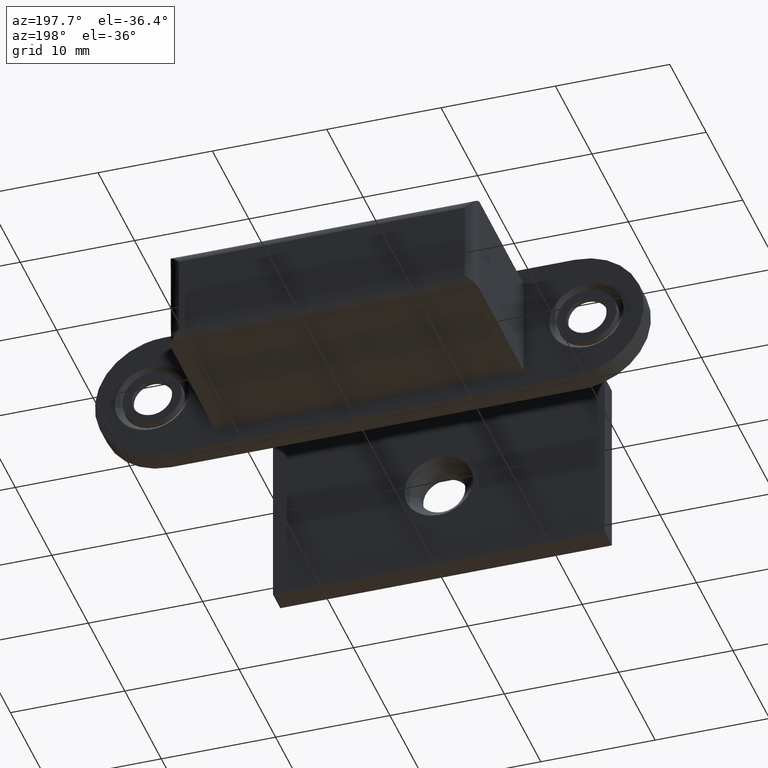
[diagram: clean part render]
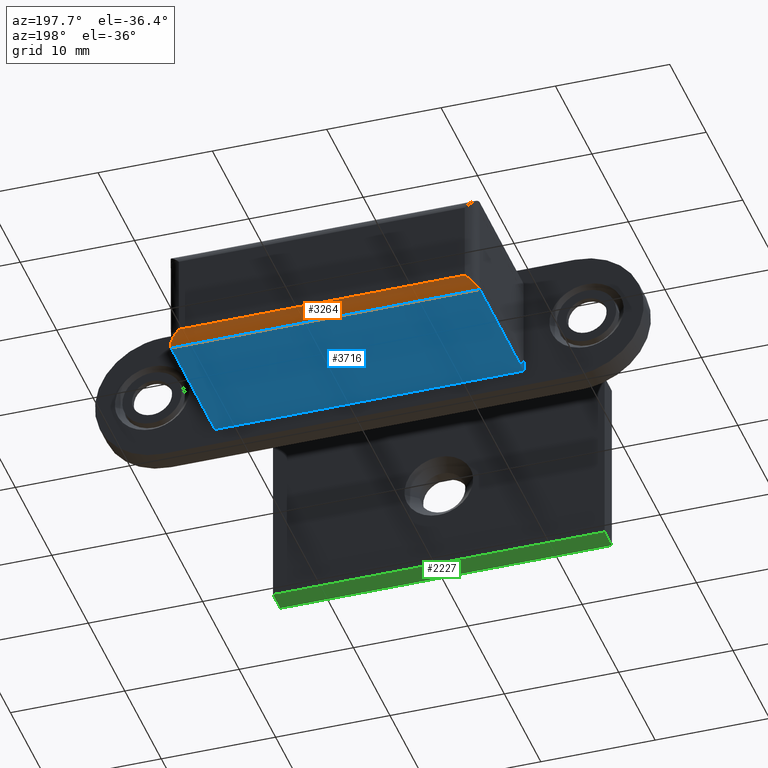
[diagram: same view with three faces highlighted in distinct colors, each labeled with its STEP entity id]
A machine part, auxiliary view with three faces highlighted in distinct colors.
Their STEP definitions:

[orange] entity #3264 — the highlighted face is a freeform B-spline surface patch.
#2905=CARTESIAN_POINT('',(12.499995999999960,0.0,-3.500000000000000));
#2906=VERTEX_POINT('',#2905);
#2912=CARTESIAN_POINT('',(-12.500000000000000,0.0,-3.500000000000000));
#2913=VERTEX_POINT('',#2912);
#2914=CARTESIAN_POINT('',(12.499995999999960,0.0,-3.500000000000000));
#2915=CARTESIAN_POINT('',(-12.500000000000000,0.0,-3.500000000000000));
#2916=QUASI_UNIFORM_CURVE('',1,(#2914,#2915),.UNSPECIFIED.,.F.,.U.);
#2917=EDGE_CURVE('',#2906,#2913,#2916,.T.);
#3189=CARTESIAN_POINT('',(-13.500000000000000,-1.0,-4.500000000000000));
#3190=VERTEX_POINT('',#3189);
#3191=CARTESIAN_POINT('',(-12.500000000000000,0.0,-3.500000000000000));
#3192=CARTESIAN_POINT('',(-13.500000000000000,0.0,-4.500000000000000));
#3193=CARTESIAN_POINT('',(-13.500000000000000,-1.000000000000000,-4.500000000000000));
#3201=(BOUNDED_CURVE()B_SPLINE_CURVE(2,(#3191,#3192,#3193),.UNSPECIFIED.,.F.,.U.)CURVE()GEOMETRIC_REPRESENTATION_ITEM()QUASI_UNIFORM_CURVE()RATIONAL_B_SPLINE_CURVE((1.0,0.707106781186547,1.0))REPRESENTATION_ITEM(''));
#3202=EDGE_CURVE('',#2913,#3190,#3201,.T.);
#3226=CARTESIAN_POINT('',(14.174995900000001,-1.026176948307874,-4.499657324975557));
#3227=CARTESIAN_POINT('',(-14.191874897500000,-1.026176948307874,-4.499657324975557));
#3228=CARTESIAN_POINT('',(14.174995899999999,0.074984800554719,-4.528492260166261));
#3229=CARTESIAN_POINT('',(-14.191874897500000,0.074984800554719,-4.528492260166261));
#3230=CARTESIAN_POINT('',(14.174995900000003,-0.002475520619191,-3.429679924374016));
#3231=CARTESIAN_POINT('',(-14.191874897500002,-0.002475520619191,-3.429679924374016));
#3239=(BOUNDED_SURFACE()B_SPLINE_SURFACE(1,2,((#3226,#3228,#3230),(#3227,#3229,#3231)),.UNSPECIFIED.,.F.,.F.,.U.)B_SPLINE_SURFACE_WITH_KNOTS((2,2),(3,3),(0.0,28.366870797500010),(0.0,0.994518632334191),.UNSPECIFIED.)GEOMETRIC_REPRESENTATION_ITEM()RATIONAL_B_SPLINE_SURFACE(((1.0,0.670944223154768,0.996392648609106),(1.0,0.670944223154768,0.996392648609106)))REPRESENTATION_ITEM('')SURFACE());
#3240=CARTESIAN_POINT('',(13.499995999999999,-1.0,-4.500000000000000));
#3241=VERTEX_POINT('',#3240);
#3242=CARTESIAN_POINT('',(12.499995999999960,0.0,-3.500000000000000));
#3243=CARTESIAN_POINT('',(13.499995999999957,0.0,-4.500000000000000));
#3244=CARTESIAN_POINT('',(13.499995999999960,-1.000000000000000,-4.500000000000000));
#3252=(BOUNDED_CURVE()B_SPLINE_CURVE(2,(#3242,#3243,#3244),.UNSPECIFIED.,.F.,.U.)CURVE()GEOMETRIC_REPRESENTATION_ITEM()QUASI_UNIFORM_CURVE()RATIONAL_B_SPLINE_CURVE((1.0,0.707106781186547,1.0))REPRESENTATION_ITEM(''));
#3253=EDGE_CURVE('',#2906,#3241,#3252,.T.);
#3254=ORIENTED_EDGE('',*,*,#3253,.T.);
#3255=CARTESIAN_POINT('',(-13.500000000000000,-1.0,-4.500000000000000));
#3256=CARTESIAN_POINT('',(13.499995999999999,-1.0,-4.500000000000000));
#3257=QUASI_UNIFORM_CURVE('',1,(#3255,#3256),.UNSPECIFIED.,.F.,.U.);
#3258=EDGE_CURVE('',#3190,#3241,#3257,.T.);
#3259=ORIENTED_EDGE('',*,*,#3258,.F.);
#3260=ORIENTED_EDGE('',*,*,#3202,.F.);
#3261=ORIENTED_EDGE('',*,*,#2917,.F.);
#3262=EDGE_LOOP('',(#3254,#3259,#3260,#3261));
#3263=FACE_OUTER_BOUND('',#3262,.T.);
#3264=ADVANCED_FACE('',(#3263),#3239,.T.);

[blue] entity #3716 — the highlighted face is a freeform B-spline surface patch.
#3189=CARTESIAN_POINT('',(-13.500000000000000,-1.0,-4.500000000000000));
#3190=VERTEX_POINT('',#3189);
#3240=CARTESIAN_POINT('',(13.499995999999999,-1.0,-4.500000000000000));
#3241=VERTEX_POINT('',#3240);
#3255=CARTESIAN_POINT('',(-13.500000000000000,-1.0,-4.500000000000000));
#3256=CARTESIAN_POINT('',(13.499995999999999,-1.0,-4.500000000000000));
#3257=QUASI_UNIFORM_CURVE('',1,(#3255,#3256),.UNSPECIFIED.,.F.,.U.);
#3258=EDGE_CURVE('',#3190,#3241,#3257,.T.);
#3658=CARTESIAN_POINT('',(-13.500000000000000,-13.0,-4.500000000000000));
#3659=VERTEX_POINT('',#3658);
#3660=CARTESIAN_POINT('',(-13.500000000000000,-1.0,-4.500000000000000));
#3661=CARTESIAN_POINT('',(-13.500000000000000,-13.0,-4.500000000000000));
#3662=QUASI_UNIFORM_CURVE('',1,(#3660,#3661),.UNSPECIFIED.,.F.,.U.);
#3663=EDGE_CURVE('',#3190,#3659,#3662,.T.);
#3695=CARTESIAN_POINT('',(-14.848649747868770,-13.599399976741671,-4.500000000000000));
#3696=CARTESIAN_POINT('',(-14.848649747868770,-0.400599701393247,-4.500000000000000));
#3697=CARTESIAN_POINT('',(14.848646472065100,-13.599399976741671,-4.500000000000000));
#3698=CARTESIAN_POINT('',(14.848646472065100,-0.400599701393247,-4.500000000000000));
#3699=B_SPLINE_SURFACE_WITH_KNOTS('',1,1,((#3695,#3697),(#3696,#3698)),.UNSPECIFIED.,.F.,.F.,.U.,(2,2),(2,2),(0.0,13.198800275348431),(0.0,29.697296219933872),.UNSPECIFIED.);
#3700=ORIENTED_EDGE('',*,*,#3663,.F.);
#3701=ORIENTED_EDGE('',*,*,#3258,.T.);
#3702=CARTESIAN_POINT('',(13.499995999999960,-13.0,-4.500000000000000));
#3703=VERTEX_POINT('',#3702);
#3704=CARTESIAN_POINT('',(13.499995999999999,-1.0,-4.500000000000000));
#3705=CARTESIAN_POINT('',(13.499995999999960,-13.0,-4.500000000000000));
#3706=QUASI_UNIFORM_CURVE('',1,(#3704,#3705),.UNSPECIFIED.,.F.,.U.);
#3707=EDGE_CURVE('',#3241,#3703,#3706,.T.);
#3708=ORIENTED_EDGE('',*,*,#3707,.T.);
#3709=CARTESIAN_POINT('',(13.499995999999960,-13.0,-4.500000000000000));
#3710=CARTESIAN_POINT('',(-13.500000000000000,-13.0,-4.500000000000000));
#3711=QUASI_UNIFORM_CURVE('',1,(#3709,#3710),.UNSPECIFIED.,.F.,.U.);
#3712=EDGE_CURVE('',#3703,#3659,#3711,.T.);
#3713=ORIENTED_EDGE('',*,*,#3712,.T.);
#3714=EDGE_LOOP('',(#3700,#3701,#3708,#3713));
#3715=FACE_OUTER_BOUND('',#3714,.T.);
#3716=ADVANCED_FACE('',(#3715),#3699,.T.);

[green] entity #2227 — the highlighted face is a freeform B-spline surface patch.
#2129=CARTESIAN_POINT('',(-14.500000000000000,-34.044645065486648,-8.0));
#2130=VERTEX_POINT('',#2129);
#2138=CARTESIAN_POINT('',(14.500000000000000,-34.044645065486648,-8.0));
#2139=VERTEX_POINT('',#2138);
#2140=CARTESIAN_POINT('',(14.500000000000000,-34.044645065486648,-8.0));
#2141=CARTESIAN_POINT('',(-14.500000000000000,-34.044645065486648,-8.0));
#2142=QUASI_UNIFORM_CURVE('',1,(#2140,#2141),.UNSPECIFIED.,.F.,.U.);
#2143=EDGE_CURVE('',#2139,#2130,#2142,.T.);
#2171=CARTESIAN_POINT('',(-14.500000000000000,-32.044645065486648,-8.0));
#2172=VERTEX_POINT('',#2171);
#2187=CARTESIAN_POINT('',(14.500000000000000,-32.044645065486648,-8.0));
#2188=VERTEX_POINT('',#2187);
#2194=CARTESIAN_POINT('',(14.500000000000000,-32.044645065486648,-8.0));
#2195=CARTESIAN_POINT('',(-14.500000000000000,-32.044645065486648,-8.0));
#2196=QUASI_UNIFORM_CURVE('',1,(#2194,#2195),.UNSPECIFIED.,.F.,.U.);
#2197=EDGE_CURVE('',#2188,#2172,#2196,.T.);
#2208=CARTESIAN_POINT('',(-15.948549943792379,-34.144545061610259,-8.0));
#2209=CARTESIAN_POINT('',(15.948550721632991,-34.144545061610259,-8.0));
#2210=CARTESIAN_POINT('',(-15.948549943792379,-31.944745015718858,-8.0));
#2211=CARTESIAN_POINT('',(15.948550721632991,-31.944745015718858,-8.0));
#2212=B_SPLINE_SURFACE_WITH_KNOTS('',1,1,((#2208,#2210),(#2209,#2211)),.UNSPECIFIED.,.F.,.F.,.U.,(2,2),(2,2),(0.0,31.897100665425370),(0.0,2.199800045891404),.UNSPECIFIED.);
#2213=ORIENTED_EDGE('',*,*,#2143,.T.);
#2214=CARTESIAN_POINT('',(-14.500000000000000,-32.044645065486648,-8.0));
#2215=CARTESIAN_POINT('',(-14.500000000000000,-34.044645065486648,-8.0));
#2216=QUASI_UNIFORM_CURVE('',1,(#2214,#2215),.UNSPECIFIED.,.F.,.U.);
#2217=EDGE_CURVE('',#2172,#2130,#2216,.T.);
#2218=ORIENTED_EDGE('',*,*,#2217,.F.);
#2219=ORIENTED_EDGE('',*,*,#2197,.F.);
#2220=CARTESIAN_POINT('',(14.500000000000000,-32.044645065486648,-8.0));
#2221=CARTESIAN_POINT('',(14.500000000000000,-34.044645065486648,-8.0));
#2222=QUASI_UNIFORM_CURVE('',1,(#2220,#2221),.UNSPECIFIED.,.F.,.U.);
#2223=EDGE_CURVE('',#2188,#2139,#2222,.T.);
#2224=ORIENTED_EDGE('',*,*,#2223,.T.);
#2225=EDGE_LOOP('',(#2213,#2218,#2219,#2224));
#2226=FACE_OUTER_BOUND('',#2225,.T.);
#2227=ADVANCED_FACE('',(#2226),#2212,.F.);